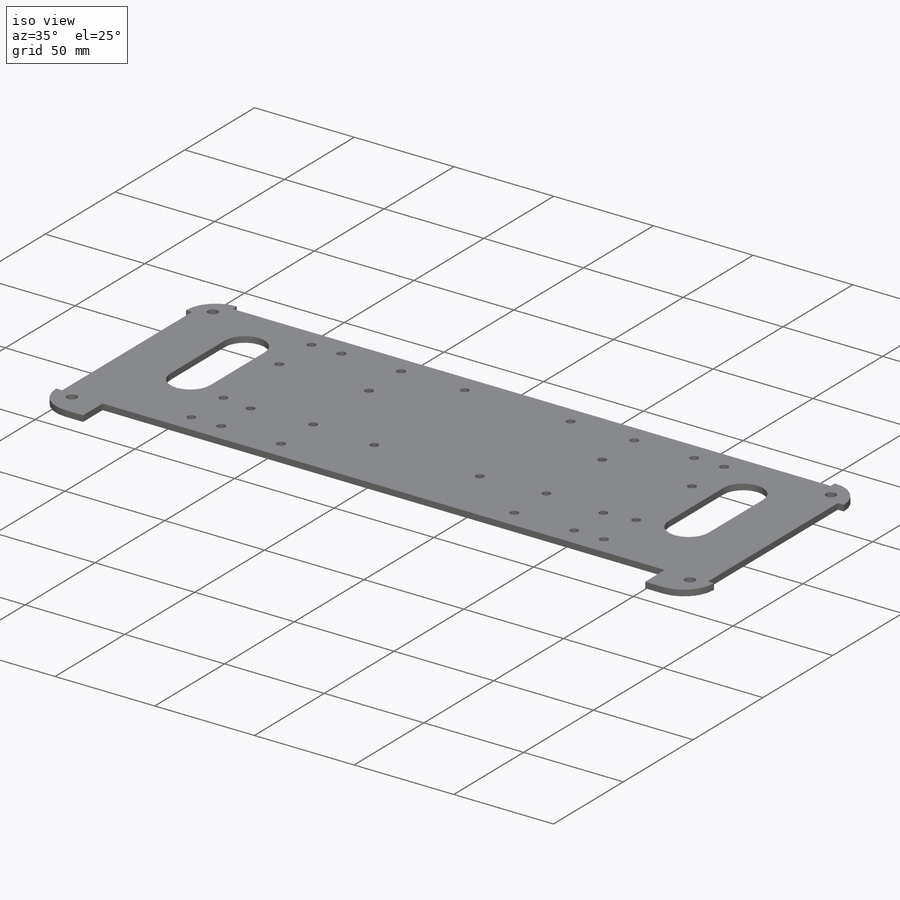
[diagram: iso view]
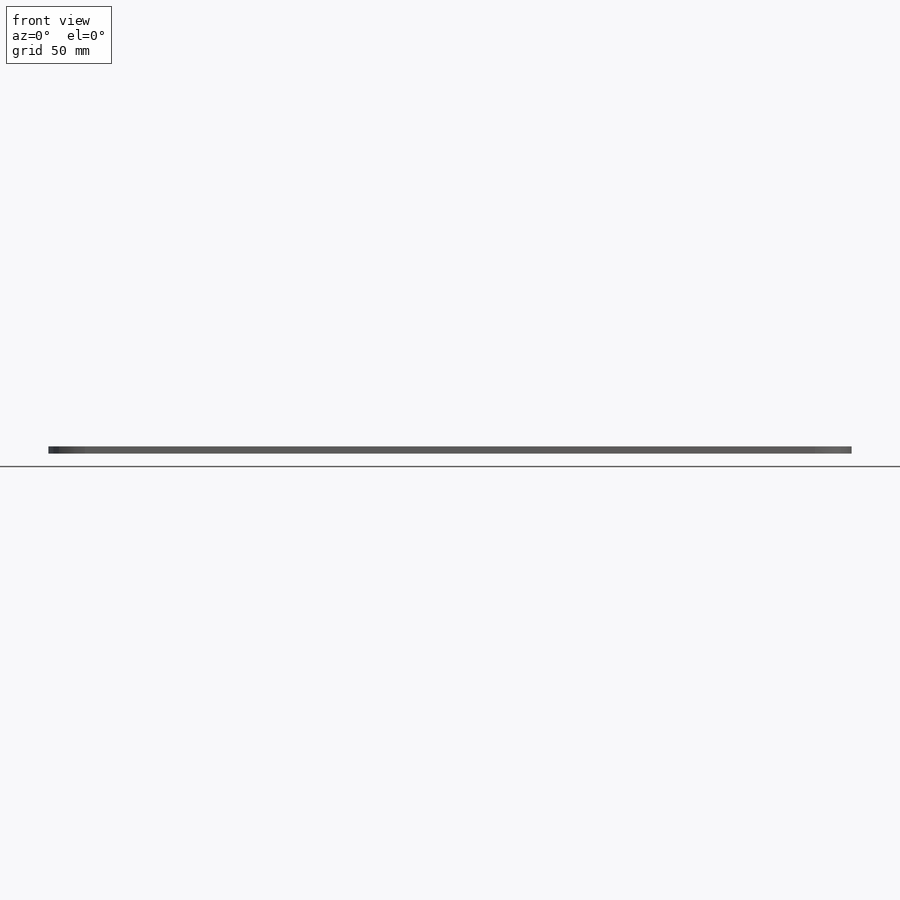
[diagram: front view]
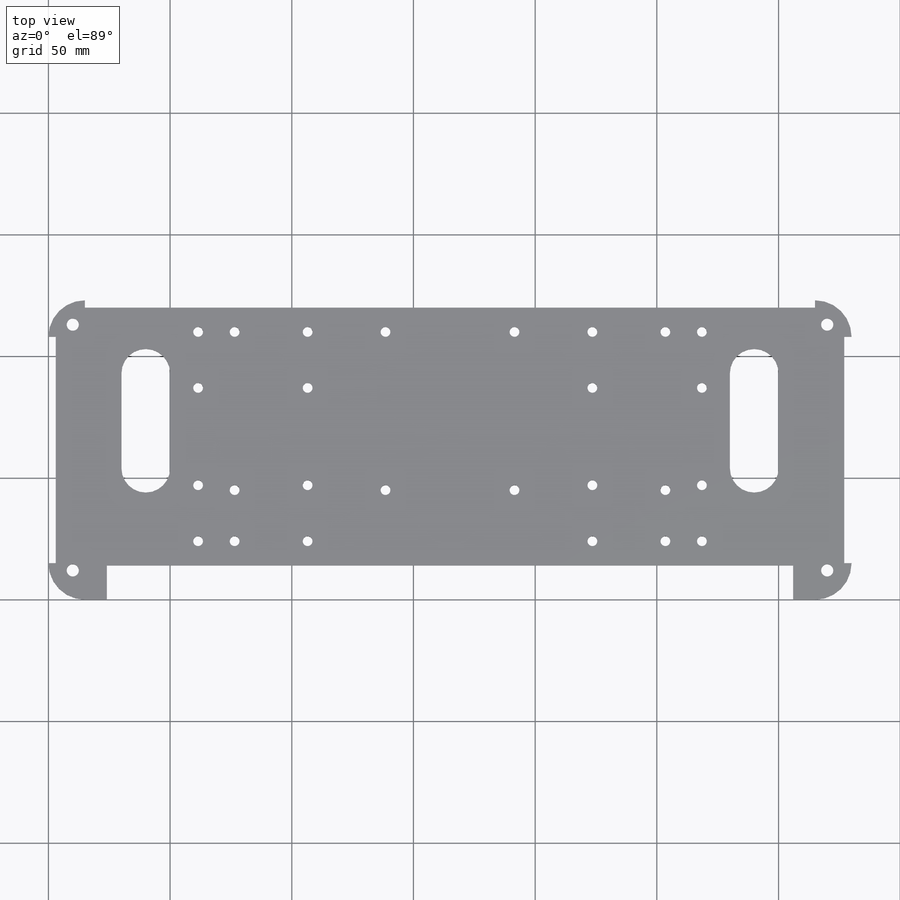
[diagram: top view]
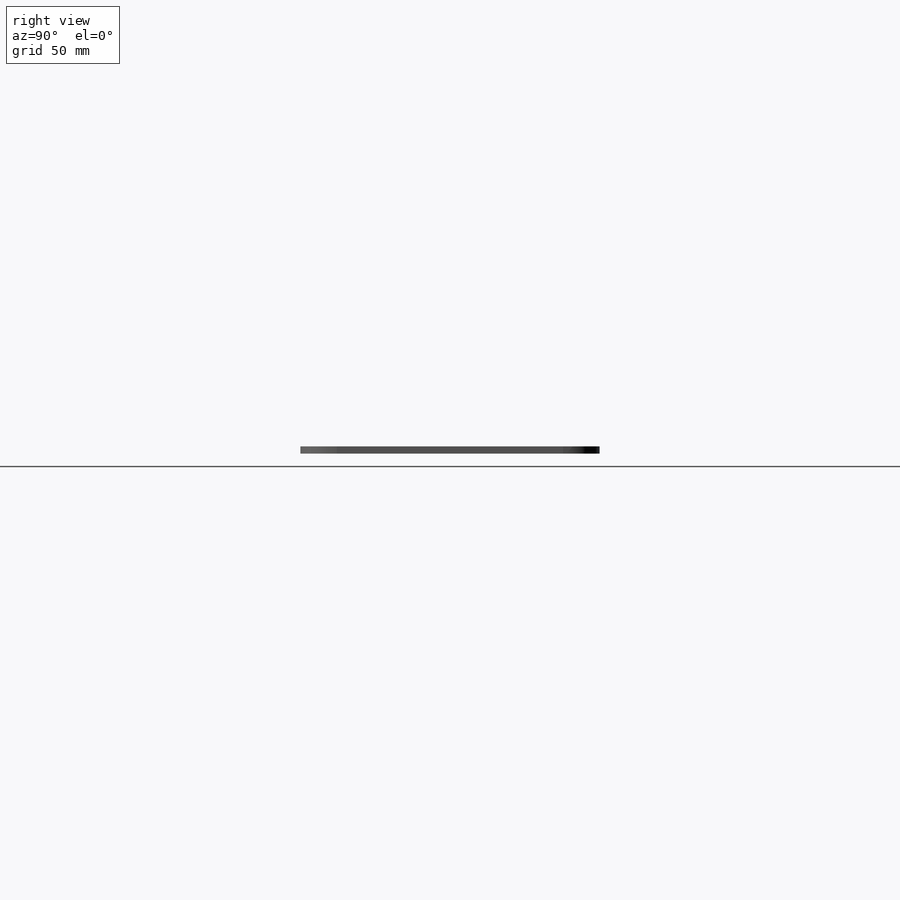
[diagram: right view]
SOLIDWORKS PART (.sldprt)
format: sldprt  version: not decoded by parser v0  size: 257,024 bytes
history: native  units: mm
features: plane x3, sketch x3, cut_extrude x2, material x1, extrude x1, fillet x1 (+11 scaffold rows collapsed)
feature tree (22):
  scaffold x11  (default folders/planes/origin — collapsed)
  material  "Matériau <non spécifié>"
  plane  "Plan de face"
  plane  "Plan de dessus"
  plane  "Plan de droite"
  sketch  "Esquisse1"  dims[c1.D3=5.0mm c1.D12=5.0mm c1.D1=330.0mm c1.D2=123.0mm c1.D4=10.0mm c1.D5=10.0mm c1.D6=14.0mm c1.D7=14.0mm c1.D8=20.0mm c1.D9=30.0mm c1.D10=40.0mm c1.D11=20.0mm c1.D13=12.0mm c2.D10=30.0mm c2.D11=40.0mm]
  extrude  "Extrusion1"  Depth=3mm
  fillet  "Congé1"  Radius=15mm
  sketch  "Esquisse2"  dims[D1=3.0mm D2=3.0mm]
  cut_extrude  "Extrusion2"  [1 undecoded]
  sketch  "Esquisse3"  dims[c1.D1=4.0mm c1.D2=4.0mm c1.D3=4.0mm c1.D5=4.0mm c1.D8=4.0mm c1.D9=4.0mm c2.D2=88.5mm c2.D3=10.0mm c2.D4=43.0mm c2.D5=15.0mm c2.D6=45.0mm c2.D7=23.0mm c2.D8=130.0mm c2.D9=65.0mm]
  cut_extrude  "Extrusion3"  [1 undecoded]
decode coverage: 5 of 7 modeling features carry decoded parameters
note: 2 parameter values undecoded
note: suppression state not decoded; provenance and decode notes live in map.json
